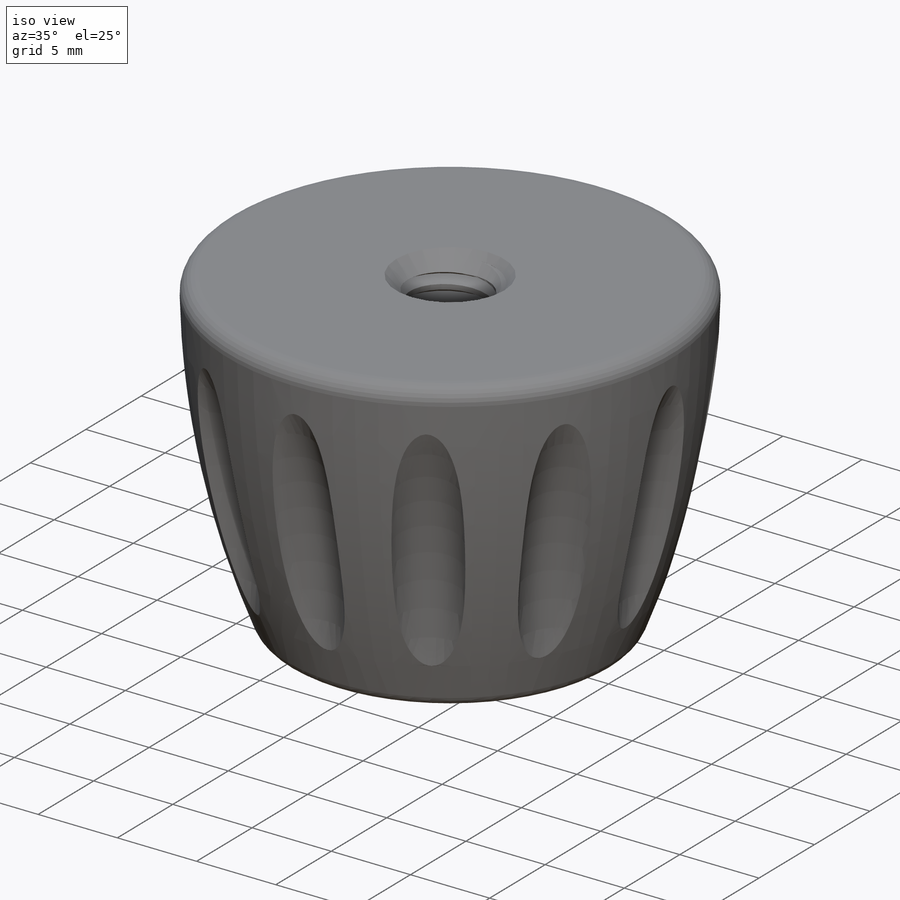
[diagram: iso view]
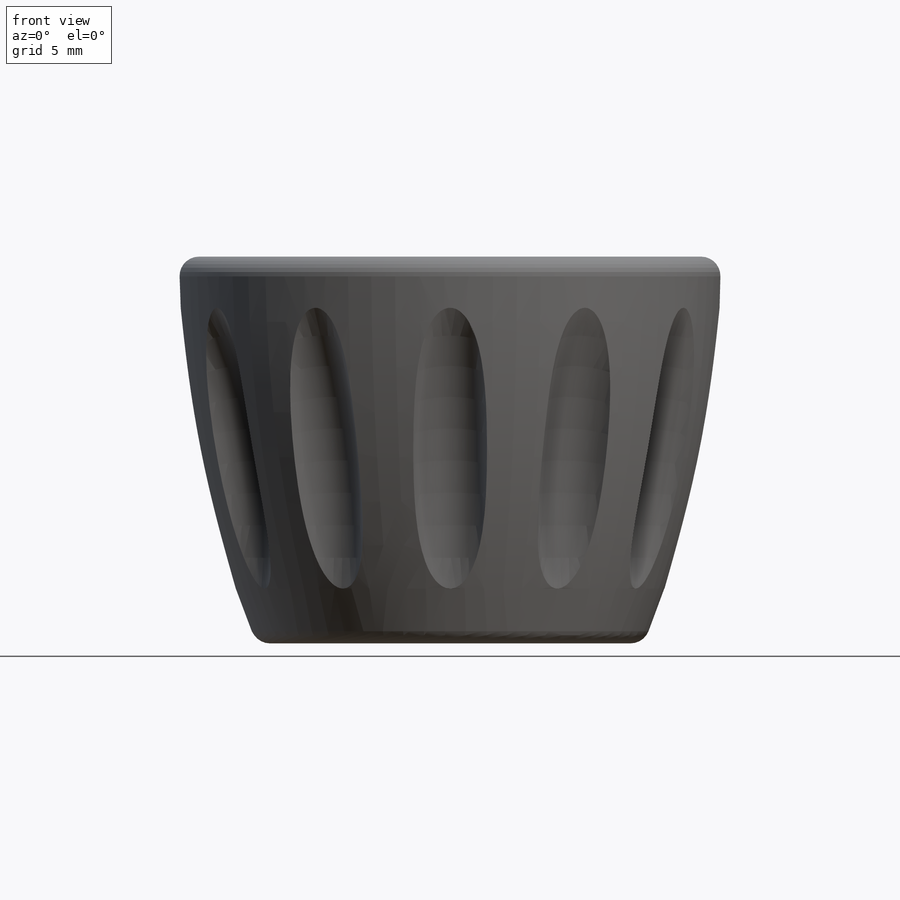
[diagram: front view]
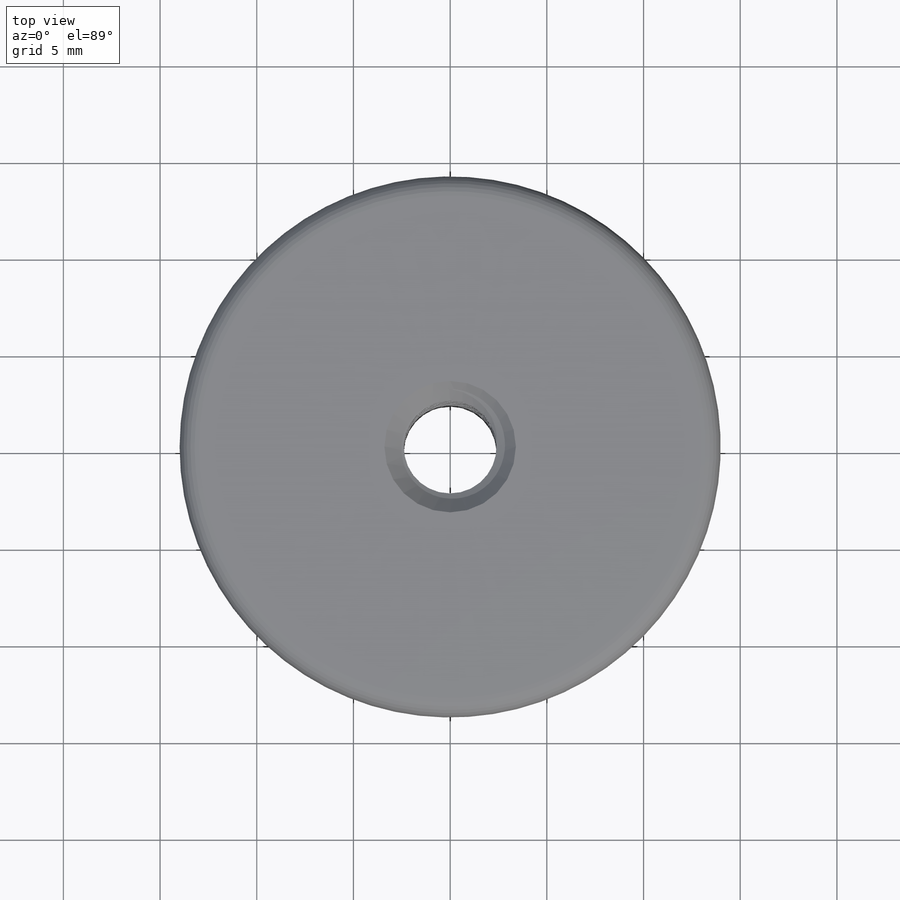
[diagram: top view]
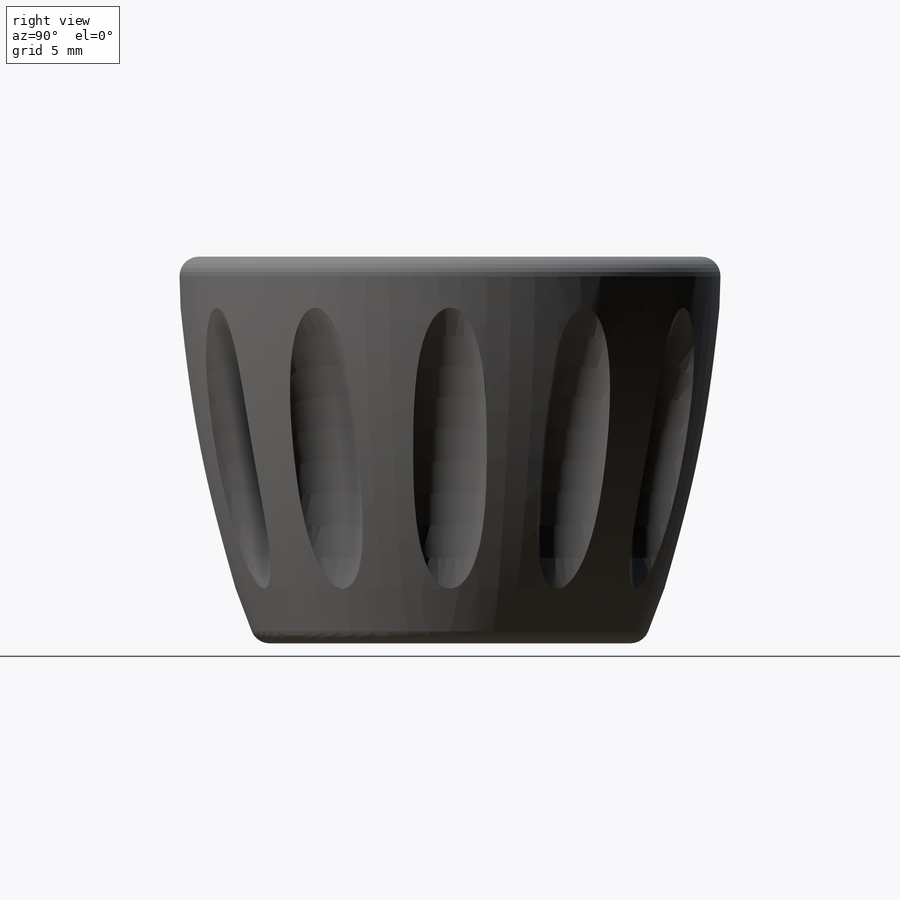
[diagram: right view]
SOLIDWORKS PART (.sldprt)
format: sldprt  version: not decoded by parser v0  size: 716,800 bytes
history: native  units: mm
features: sketch x5, plane x4, sweep x2, material x1, revolve x1, fillet x1, chamfer x1, pattern_circular x1, helix x1 (+13 scaffold rows collapsed)
feature tree (30):
  scaffold x13  (default folders/planes/origin — collapsed)
  material  "Бук"
  plane  "Спереди"
  plane  "Сверху"
  plane  "Справа"
  sketch  "Эскиз1"  dims[D5=104.0mm D1=4.8mm D2=20.0mm D3=28.0mm D4=20.0mm]
  revolve  "Повернуть1"  Angle=360deg
  fillet  "Скругление1"  Radius=1mm
  chamfer  "Фаска1"  Distance=1mm Angle=45deg
  sketch  "Эскиз2"  dims[D1=~14.096073mm D2=38.5mm D3=15.0mm]
  plane  "Плоскость1"
  sketch  "Эскиз3"  dims[D1=4.0mm]
  sweep  "Вырез-По траектории1"
  pattern_circular  "Круговой массив1"  Count=12 Angle=360deg
  sketch  "Эскиз4"  dims[D1=6.0mm]
  helix  "Спираль1"  Pitch=30mm
  sketch  "Эскиз5"  dims[D1=1.0mm]
  sweep  "Вырез-По траектории2"
decode coverage: 10 of 12 modeling features carry decoded parameters
note: ~ marks probable driven/reference dimensions
note: suppression state not decoded; provenance and decode notes live in map.json
